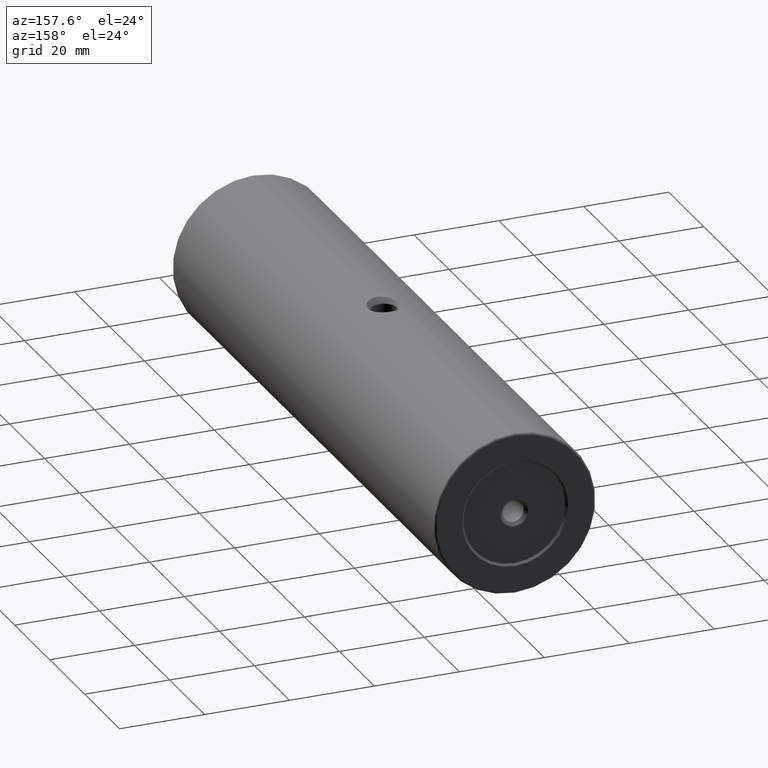
[diagram: clean part render]
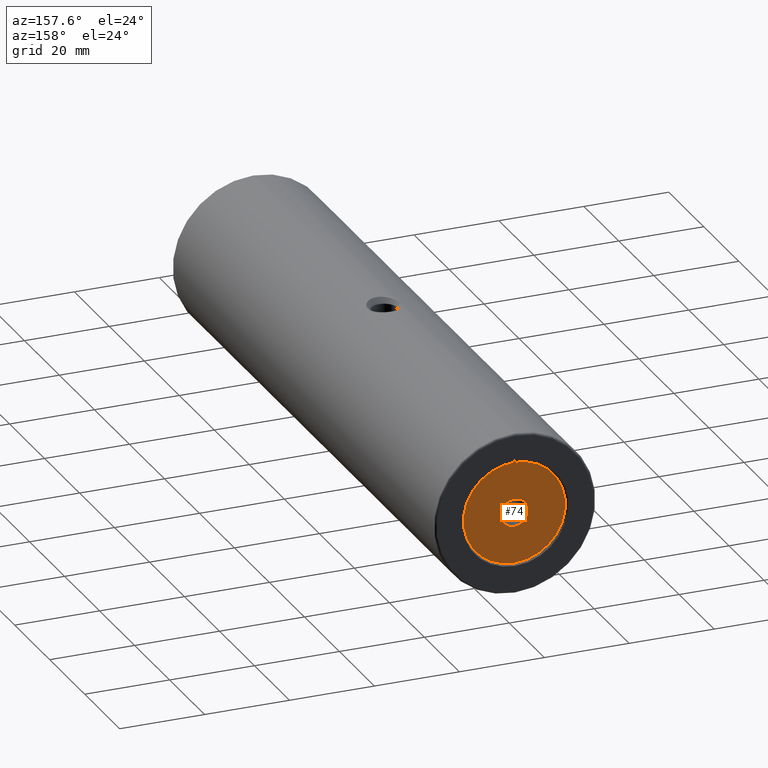
[diagram: same view with one face highlighted and labeled with its STEP entity id]
A machine part, auxiliary view. The second image highlights one B-rep face of the part: STEP entity #74.
In plain terms, the highlighted planar face has unit normal (0, 1, 0).
Its self-contained STEP definition (entity closure, byte-faithful):
#13 = AXIS2_PLACEMENT_3D ( 'NONE', #544, #692, #474 ) ;
#14 = ORIENTED_EDGE ( 'NONE', *, *, #84, .T. ) ;
#27 = AXIS2_PLACEMENT_3D ( 'NONE', #117, #195, #588 ) ;
#33 = VERTEX_POINT ( 'NONE', #862 ) ;
#60 = ORIENTED_EDGE ( 'NONE', *, *, #780, .T. ) ;
#74 = ADVANCED_FACE ( 'NONE', ( #998, #215 ), #551, .T. ) ;
#84 = EDGE_CURVE ( 'NONE', #373, #33, #242, .T. ) ;
#117 = CARTESIAN_POINT ( 'NONE',  ( -85.22679983354142053, 70.23866000832570933, 400.0000000000000000 ) ) ;
#122 = CARTESIAN_POINT ( 'NONE',  ( -85.22679983354142053, 70.23866000832570933, 400.0000000000000000 ) ) ;
#126 = CIRCLE ( 'NONE', #27, 12.00000000000001066 ) ;
#143 = VERTEX_POINT ( 'NONE', #953 ) ;
#152 = CIRCLE ( 'NONE', #857, 3.249999999999975131 ) ;
#165 = DIRECTION ( 'NONE',  ( -0.0000000000000000000, -1.000000000000000000, -0.0000000000000000000 ) ) ;
#177 = CIRCLE ( 'NONE', #913, 12.00000000000001066 ) ;
#195 = DIRECTION ( 'NONE',  ( 0.0000000000000000000, 1.000000000000000000, 0.0000000000000000000 ) ) ;
#215 = FACE_OUTER_BOUND ( 'NONE', #503, .T. ) ;
#216 = EDGE_LOOP ( 'NONE', ( #60, #14 ) ) ;
#237 = CARTESIAN_POINT ( 'NONE',  ( -85.22679983354142053, 70.23866000832570933, 400.0000000000000000 ) ) ;
#242 = CIRCLE ( 'NONE', #899, 3.249999999999975131 ) ;
#373 = VERTEX_POINT ( 'NONE', #621 ) ;
#474 = DIRECTION ( 'NONE',  ( 0.0000000000000000000, -0.0000000000000000000, 1.000000000000000000 ) ) ;
#503 = EDGE_LOOP ( 'NONE', ( #673, #840 ) ) ;
#510 = DIRECTION ( 'NONE',  ( 0.0000000000000000000, 0.0000000000000000000, 1.000000000000000000 ) ) ;
#544 = CARTESIAN_POINT ( 'NONE',  ( -85.22679983354142053, 70.23866000832570933, 400.0000000000000000 ) ) ;
#551 = PLANE ( 'NONE',  #13 ) ;
#588 = DIRECTION ( 'NONE',  ( 0.0000000000000000000, 0.0000000000000000000, 1.000000000000000000 ) ) ;
#619 = DIRECTION ( 'NONE',  ( 0.0000000000000000000, 0.0000000000000000000, 1.000000000000000000 ) ) ;
#621 = CARTESIAN_POINT ( 'NONE',  ( -85.22679983354142053, 70.23866000832570933, 396.7500000000000000 ) ) ;
#666 = EDGE_CURVE ( 'NONE', #753, #143, #177, .T. ) ;
#673 = ORIENTED_EDGE ( 'NONE', *, *, #666, .T. ) ;
#682 = EDGE_CURVE ( 'NONE', #143, #753, #126, .T. ) ;
#692 = DIRECTION ( 'NONE',  ( 0.0000000000000000000, 1.000000000000000000, 0.0000000000000000000 ) ) ;
#753 = VERTEX_POINT ( 'NONE', #759 ) ;
#759 = CARTESIAN_POINT ( 'NONE',  ( -85.22679983354142053, 70.23866000832570933, 412.0000000000000568 ) ) ;
#780 = EDGE_CURVE ( 'NONE', #33, #373, #152, .T. ) ;
#787 = DIRECTION ( 'NONE',  ( 0.0000000000000000000, 0.0000000000000000000, 1.000000000000000000 ) ) ;
#837 = DIRECTION ( 'NONE',  ( 0.0000000000000000000, 1.000000000000000000, 0.0000000000000000000 ) ) ;
#840 = ORIENTED_EDGE ( 'NONE', *, *, #682, .T. ) ;
#850 = DIRECTION ( 'NONE',  ( -0.0000000000000000000, -1.000000000000000000, -0.0000000000000000000 ) ) ;
#857 = AXIS2_PLACEMENT_3D ( 'NONE', #930, #850, #619 ) ;
#862 = CARTESIAN_POINT ( 'NONE',  ( -85.22679983354142053, 70.23866000832570933, 403.2500000000000568 ) ) ;
#899 = AXIS2_PLACEMENT_3D ( 'NONE', #237, #165, #787 ) ;
#913 = AXIS2_PLACEMENT_3D ( 'NONE', #122, #837, #510 ) ;
#930 = CARTESIAN_POINT ( 'NONE',  ( -85.22679983354142053, 70.23866000832570933, 400.0000000000000000 ) ) ;
#953 = CARTESIAN_POINT ( 'NONE',  ( -85.22679983354142053, 70.23866000832570933, 388.0000000000000000 ) ) ;
#998 = FACE_BOUND ( 'NONE', #216, .T. ) ;